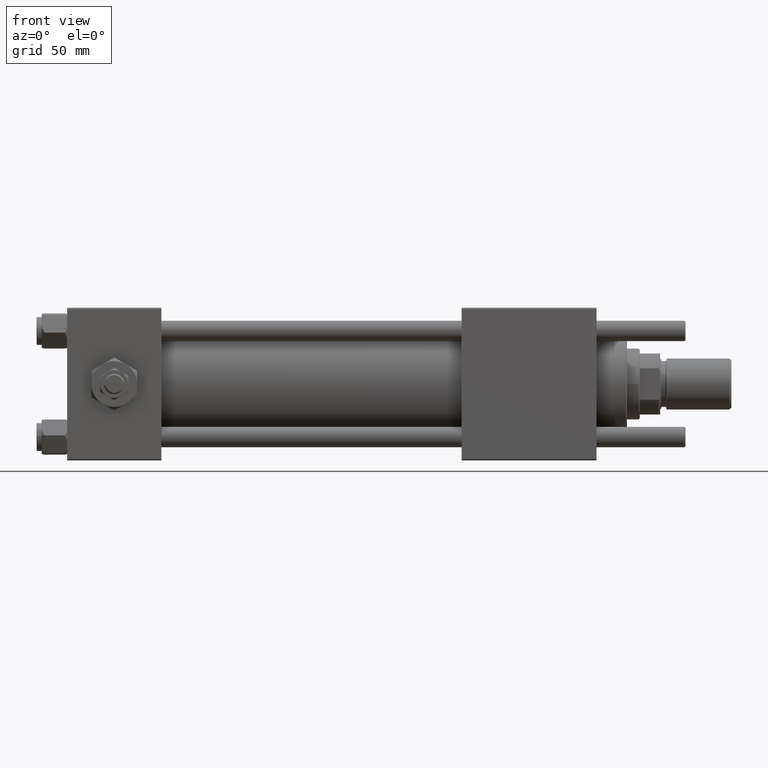
[diagram: clean part render]
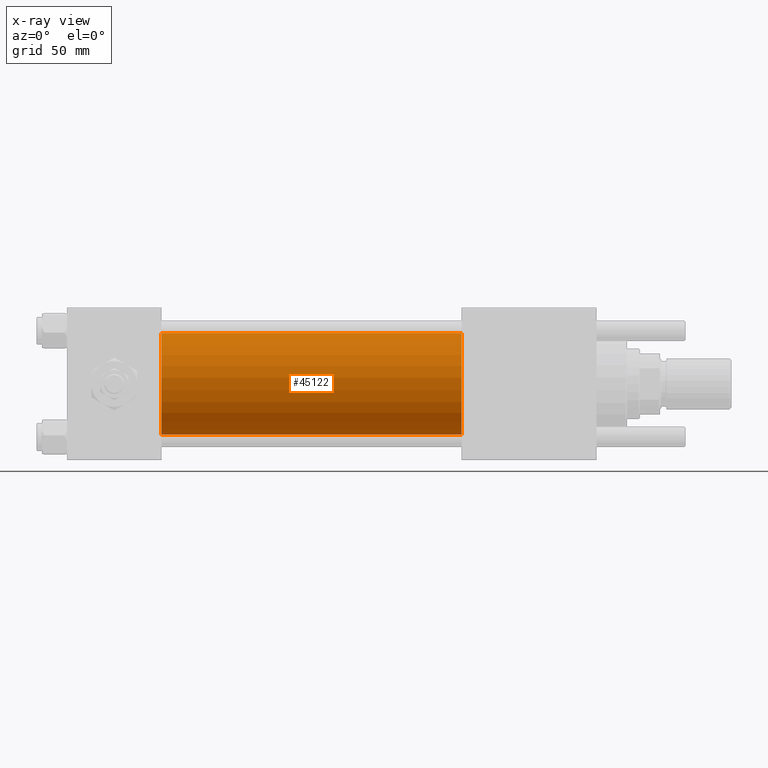
[diagram: x-ray — body ghosted, one internal face saturated and labeled with its STEP entity id]
A machine part, front view, then the same camera in x-ray: the body is ghosted and one INTERNAL B-rep face — a face not visible from any outside direction — is saturated and labeled: STEP entity #45122.
In plain terms, the highlighted cylindrical surface (partial cylindrical patch) has radius 20 mm, axis along (-1, -0, -0).
Its self-contained STEP definition (entity closure, byte-faithful):
#99 = VERTEX_POINT ( 'NONE', #28001 ) ;
#447 = EDGE_CURVE ( 'NONE', #48260, #23788, #24389, .T. ) ;
#506 = CARTESIAN_POINT ( 'NONE',  ( 155.0000000000000000, -1.527916156705042519E-16, -20.00000000000000000 ) ) ;
#721 = VERTEX_POINT ( 'NONE', #14963 ) ;
#7563 = DIRECTION ( 'NONE',  ( 1.000000000000000000, 0.000000000000000000, 0.000000000000000000 ) ) ;
#8419 = EDGE_CURVE ( 'NONE', #48260, #721, #55917, .T. ) ;
#11149 = DIRECTION ( 'NONE',  ( -1.000000000000000000, -0.000000000000000000, -0.000000000000000000 ) ) ;
#11688 = DIRECTION ( 'NONE',  ( -1.000000000000000000, -0.000000000000000000, -0.000000000000000000 ) ) ;
#12328 = DIRECTION ( 'NONE',  ( 0.000000000000000000, 0.000000000000000000, -1.000000000000000000 ) ) ;
#12961 = EDGE_LOOP ( 'NONE', ( #24824, #18598, #24765, #45804 ) ) ;
#14824 = AXIS2_PLACEMENT_3D ( 'NONE', #21949, #32334, #58332 ) ;
#14963 = CARTESIAN_POINT ( 'NONE',  ( 37.00000000000000000, -2.602085213965210642E-15, 20.00000000000000000 ) ) ;
#16759 = DIRECTION ( 'NONE',  ( 0.000000000000000000, 0.000000000000000000, 1.000000000000000000 ) ) ;
#18598 = ORIENTED_EDGE ( 'NONE', *, *, #44197, .T. ) ;
#19033 = DIRECTION ( 'NONE',  ( -1.000000000000000000, -0.000000000000000000, -0.000000000000000000 ) ) ;
#21897 = CARTESIAN_POINT ( 'NONE',  ( 155.0000000000000000, -2.602085213965210642E-15, 0.000000000000000000 ) ) ;
#21949 = CARTESIAN_POINT ( 'NONE',  ( 37.00000000000000000, -2.602085213965210642E-15, 0.000000000000000000 ) ) ;
#22929 = LINE ( 'NONE', #506, #54341 ) ;
#23788 = VERTEX_POINT ( 'NONE', #56495 ) ;
#24389 = CIRCLE ( 'NONE', #41532, 20.00000000000000000 ) ;
#24765 = ORIENTED_EDGE ( 'NONE', *, *, #29657, .F. ) ;
#24824 = ORIENTED_EDGE ( 'NONE', *, *, #447, .T. ) ;
#26301 = CYLINDRICAL_SURFACE ( 'NONE', #56170, 20.00000000000000000 ) ;
#28001 = CARTESIAN_POINT ( 'NONE',  ( 37.00000000000000000, -1.527916156705042519E-16, -20.00000000000000000 ) ) ;
#29657 = EDGE_CURVE ( 'NONE', #721, #99, #30063, .T. ) ;
#30063 = CIRCLE ( 'NONE', #14824, 20.00000000000000000 ) ;
#32334 = DIRECTION ( 'NONE',  ( 1.000000000000000000, 0.000000000000000000, 0.000000000000000000 ) ) ;
#38027 = CARTESIAN_POINT ( 'NONE',  ( 155.0000000000000000, -2.602085213965210642E-15, 20.00000000000000000 ) ) ;
#41532 = AXIS2_PLACEMENT_3D ( 'NONE', #21897, #7563, #12328 ) ;
#44197 = EDGE_CURVE ( 'NONE', #23788, #99, #22929, .T. ) ;
#45122 = ADVANCED_FACE ( 'NONE', ( #52562 ), #26301, .F. ) ;
#45804 = ORIENTED_EDGE ( 'NONE', *, *, #8419, .F. ) ;
#46558 = VECTOR ( 'NONE', #11149, 1000.000000000000000 ) ;
#48260 = VERTEX_POINT ( 'NONE', #55679 ) ;
#52562 = FACE_OUTER_BOUND ( 'NONE', #12961, .T. ) ;
#54341 = VECTOR ( 'NONE', #19033, 1000.000000000000000 ) ;
#55679 = CARTESIAN_POINT ( 'NONE',  ( 155.0000000000000000, -2.602085213965210642E-15, 20.00000000000000000 ) ) ;
#55917 = LINE ( 'NONE', #38027, #46558 ) ;
#56170 = AXIS2_PLACEMENT_3D ( 'NONE', #57626, #11688, #16759 ) ;
#56495 = CARTESIAN_POINT ( 'NONE',  ( 155.0000000000000000, -1.527916156705042519E-16, -20.00000000000000000 ) ) ;
#57626 = CARTESIAN_POINT ( 'NONE',  ( 155.0000000000000000, -2.602085213965210642E-15, 0.000000000000000000 ) ) ;
#58332 = DIRECTION ( 'NONE',  ( 0.000000000000000000, 0.000000000000000000, -1.000000000000000000 ) ) ;